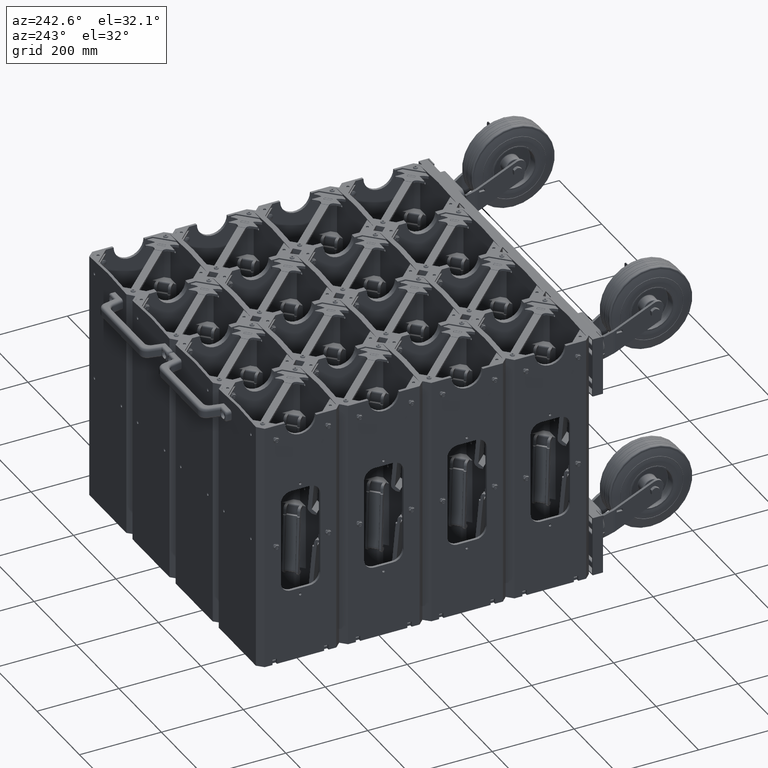
[diagram: clean part render]
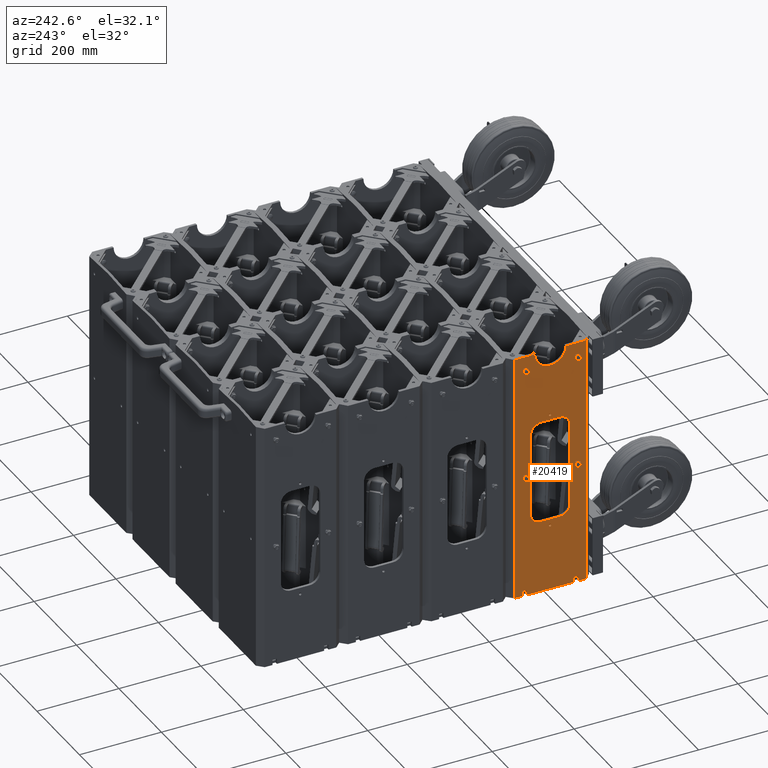
[diagram: same view with one face highlighted and labeled with its STEP entity id]
A machine part, auxiliary view. The second image highlights one B-rep face of the part: STEP entity #20419.
In plain terms, the highlighted planar face has unit normal (1, -0, -0).
Its self-contained STEP definition (entity closure, byte-faithful):
#2328 = AXIS2_PLACEMENT_3D ( 'NONE', #15723, #15725, #15727 ) ;
#2331 = AXIS2_PLACEMENT_3D ( 'NONE', #15704, #15706, #15708 ) ;
#2335 = AXIS2_PLACEMENT_3D ( 'NONE', #15742, #15745, #15746 ) ;
#2339 = AXIS2_PLACEMENT_3D ( 'NONE', #15737, #15764, #15766 ) ;
#2341 = AXIS2_PLACEMENT_3D ( 'NONE', #15763, #15784, #15785 ) ;
#2343 = AXIS2_PLACEMENT_3D ( 'NONE', #15783, #15805, #15806 ) ;
#11695 = CARTESIAN_POINT ( 'NONE',  ( 4.387244592291482200E-015, -4.000000000000000900, 5.863000000000000400 ) ) ;
#11697 = CARTESIAN_POINT ( 'NONE',  ( 0.0000000000000000000, -4.000000000000000900, 5.597000000000000400 ) ) ;
#11702 = CARTESIAN_POINT ( 'NONE',  ( 1.628780242866133300E-017, -4.000000000000000900, -5.261999999999999600 ) ) ;
#11704 = CARTESIAN_POINT ( 'NONE',  ( 0.0000000000000000000, -4.000000000000000900, -5.527999999999999600 ) ) ;
#11709 = CARTESIAN_POINT ( 'NONE',  ( 2.500000000000004400, -4.000000000000009800, -10.51199999999999700 ) ) ;
#11711 = CARTESIAN_POINT ( 'NONE',  ( 2.500000000000000000, -4.000000000000009800, -10.77799999999999700 ) ) ;
#11716 = CARTESIAN_POINT ( 'NONE',  ( -2.499999999999995600, -4.000000000000000900, -10.51200000000000200 ) ) ;
#11718 = CARTESIAN_POINT ( 'NONE',  ( -2.500000000000000000, -4.000000000000000900, -10.77800000000000200 ) ) ;
#11723 = CARTESIAN_POINT ( 'NONE',  ( 2.500000000000000000, -4.000000000000009800, 0.2380000000000009600 ) ) ;
#11724 = CARTESIAN_POINT ( 'NONE',  ( 2.499999999999995600, -4.000000000000009800, -0.02799999999999853000 ) ) ;
#11730 = CARTESIAN_POINT ( 'NONE',  ( -2.500000000000000000, -4.000000000000000900, 0.2380000000000009100 ) ) ;
#11731 = CARTESIAN_POINT ( 'NONE',  ( -2.500000000000000000, -4.000000000000000900, -0.02799999999999853000 ) ) ;
#11781 = CARTESIAN_POINT ( 'NONE',  ( -3.437500000000004900, -4.000000000000000900, 12.10499999999999500 ) ) ;
#11783 = CARTESIAN_POINT ( 'NONE',  ( -2.687500000000000400, -4.000000000000000900, 12.10499999999999900 ) ) ;
#11788 = CARTESIAN_POINT ( 'NONE',  ( -2.263500000000002700, -4.000000000000000900, 12.10499999999999900 ) ) ;
#11790 = CARTESIAN_POINT ( 'NONE',  ( 2.263499999999998300, -4.000000000000009800, 12.10500000000000200 ) ) ;
#11795 = CARTESIAN_POINT ( 'NONE',  ( 2.687500000000000400, -4.000000000000009800, 12.10500000000000200 ) ) ;
#11796 = CARTESIAN_POINT ( 'NONE',  ( 3.437499999999992000, -4.000000000000005300, 12.10500000000000200 ) ) ;
#11922 = CARTESIAN_POINT ( 'NONE',  ( -1.500000000000000900, -4.000000000000000900, -11.89500000000000100 ) ) ;
#11923 = CARTESIAN_POINT ( 'NONE',  ( -3.437500000000000900, -4.000000000000000900, -11.89500000000000500 ) ) ;
#11925 = CARTESIAN_POINT ( 'NONE',  ( 1.499999999999996700, -4.000000000000005300, -11.89499999999999800 ) ) ;
#11927 = CARTESIAN_POINT ( 'NONE',  ( 3.437499999999996400, -4.000000000000009800, -11.89499999999999800 ) ) ;
#11928 = CARTESIAN_POINT ( 'NONE',  ( -1.894999999999999400, -4.000000000000000900, 4.104999999999999500 ) ) ;
#11930 = CARTESIAN_POINT ( 'NONE',  ( -1.895000000000003800, -4.000000000000000900, -3.894999999999996900 ) ) ;
#11932 = CARTESIAN_POINT ( 'NONE',  ( -0.8950000000000045700, -4.000000000000000900, 5.104999999999999500 ) ) ;
#11934 = CARTESIAN_POINT ( 'NONE',  ( 0.8950000000000001300, -4.000000000000005300, 5.105000000000001300 ) ) ;
#11935 = CARTESIAN_POINT ( 'NONE',  ( 1.894999999999999400, -4.000000000000009800, 4.105000000000000400 ) ) ;
#11937 = CARTESIAN_POINT ( 'NONE',  ( 1.894999999999999400, -4.000000000000009800, -3.894999999999991100 ) ) ;
#11939 = CARTESIAN_POINT ( 'NONE',  ( 0.8949999999999870300, -4.000000000000005300, -4.894999999999996900 ) ) ;
#11940 = CARTESIAN_POINT ( 'NONE',  ( -0.8950000000000045700, -4.000000000000000900, -4.894999999999998700 ) ) ;
#11942 = CARTESIAN_POINT ( 'NONE',  ( 2.263499999999998300, -4.000000000000009800, 11.60500000000000200 ) ) ;
#11944 = CARTESIAN_POINT ( 'NONE',  ( 2.687500000000000400, -4.000000000000009800, 11.60500000000000200 ) ) ;
#11946 = CARTESIAN_POINT ( 'NONE',  ( -2.263500000000002700, -4.000000000000000900, 11.60499999999999900 ) ) ;
#11947 = CARTESIAN_POINT ( 'NONE',  ( -2.687500000000000400, -4.000000000000000900, 11.60499999999999900 ) ) ;
#15324 = CARTESIAN_POINT ( 'NONE',  ( -4.000000000000000900, -4.000000000000000900, -11.89500000000000500 ) ) ;
#15326 = DIRECTION ( 'NONE',  ( 1.000000000000000000, -1.972152263052529500E-031, 0.0000000000000000000 ) ) ;
#15335 = CARTESIAN_POINT ( 'NONE',  ( -2.500000000000000000, -4.000000000000000900, -10.64500000000000100 ) ) ;
#15345 = CARTESIAN_POINT ( 'NONE',  ( -4.000000000000000900, -4.000000000000000900, -11.89500000000000500 ) ) ;
#15347 = DIRECTION ( 'NONE',  ( 1.000000000000000000, -1.972152263052529500E-031, 0.0000000000000000000 ) ) ;
#15351 = DIRECTION ( 'NONE',  ( 1.972152263052529500E-031, -1.000000000000000000, 0.0000000000000000000 ) ) ;
#15353 = DIRECTION ( 'NONE',  ( 0.0000000000000000000, 0.0000000000000000000, -1.000000000000000000 ) ) ;
#15354 = CARTESIAN_POINT ( 'NONE',  ( -1.894999999999999400, -4.000000000000000900, 4.105000000000000400 ) ) ;
#15358 = CARTESIAN_POINT ( 'NONE',  ( 2.499999999999995600, -4.000000000000009800, 0.1050000000000012000 ) ) ;
#15369 = DIRECTION ( 'NONE',  ( 1.972152263052529500E-031, -1.000000000000000000, 0.0000000000000000000 ) ) ;
#15371 = DIRECTION ( 'NONE',  ( 0.0000000000000000000, 0.0000000000000000000, -1.000000000000000000 ) ) ;
#15372 = CARTESIAN_POINT ( 'NONE',  ( -2.500000000000000000, -4.000000000000000900, 0.1050000000000011900 ) ) ;
#15375 = DIRECTION ( 'NONE',  ( 1.972152263052529500E-031, -1.000000000000000000, 0.0000000000000000000 ) ) ;
#15376 = DIRECTION ( 'NONE',  ( 0.0000000000000000000, 0.0000000000000000000, -1.000000000000000000 ) ) ;
#15378 = CARTESIAN_POINT ( 'NONE',  ( 2.500000000000000000, -4.000000000000009800, -10.64499999999999800 ) ) ;
#15380 = DIRECTION ( 'NONE',  ( 1.972152263052529500E-031, -1.000000000000000000, 0.0000000000000000000 ) ) ;
#15382 = DIRECTION ( 'NONE',  ( 0.0000000000000000000, 0.0000000000000000000, -1.000000000000000000 ) ) ;
#15384 = CARTESIAN_POINT ( 'NONE',  ( 0.0000000000000000000, -4.000000000000000900, 5.730000000000000400 ) ) ;
#15386 = DIRECTION ( 'NONE',  ( 1.972152263052529500E-031, -1.000000000000000000, 0.0000000000000000000 ) ) ;
#15388 = DIRECTION ( 'NONE',  ( 0.0000000000000000000, 0.0000000000000000000, -1.000000000000000000 ) ) ;
#15390 = CARTESIAN_POINT ( 'NONE',  ( 0.0000000000000000000, -4.000000000000000900, -5.394999999999999600 ) ) ;
#15392 = DIRECTION ( 'NONE',  ( 1.972152263052529500E-031, -1.000000000000000000, 0.0000000000000000000 ) ) ;
#15393 = DIRECTION ( 'NONE',  ( 0.0000000000000000000, 0.0000000000000000000, -1.000000000000000000 ) ) ;
#15395 = CARTESIAN_POINT ( 'NONE',  ( -0.8950000000000045700, -4.000000000000000900, 5.104999999999999500 ) ) ;
#15398 = DIRECTION ( 'NONE',  ( -2.048885995248197900E-016, 0.0000000000000000000, -1.000000000000000000 ) ) ;
#15399 = CARTESIAN_POINT ( 'NONE',  ( 0.8950000000000001300, -4.000000000000005300, 4.105000000000001300 ) ) ;
#15401 = DIRECTION ( 'NONE',  ( 1.972152263052529500E-031, -1.000000000000000000, 0.0000000000000000000 ) ) ;
#15403 = DIRECTION ( 'NONE',  ( 0.0000000000000000000, 0.0000000000000000000, -1.000000000000000000 ) ) ;
#15405 = CARTESIAN_POINT ( 'NONE',  ( -0.8950000000000001300, -4.000000000000000900, 4.104999999999999500 ) ) ;
#15407 = DIRECTION ( 'NONE',  ( 1.972152263052529500E-031, -1.000000000000000000, 0.0000000000000000000 ) ) ;
#15409 = DIRECTION ( 'NONE',  ( 0.0000000000000000000, 0.0000000000000000000, 1.000000000000000000 ) ) ;
#15410 = CARTESIAN_POINT ( 'NONE',  ( 1.894999999999999400, -4.000000000000009800, 4.105000000000000400 ) ) ;
#15413 = DIRECTION ( 'NONE',  ( -1.000000000000000000, 1.972152263052529100E-031, -6.104688253998350900E-016 ) ) ;
#15415 = CARTESIAN_POINT ( 'NONE',  ( -0.8950000000000045700, -4.000000000000000900, -4.894999999999998700 ) ) ;
#15417 = DIRECTION ( 'NONE',  ( 0.0000000000000000000, 0.0000000000000000000, 1.000000000000000000 ) ) ;
#15418 = CARTESIAN_POINT ( 'NONE',  ( 0.8950000000000001300, -4.000000000000005300, -3.894999999999996500 ) ) ;
#15421 = DIRECTION ( 'NONE',  ( 1.972152263052529500E-031, -1.000000000000000000, 0.0000000000000000000 ) ) ;
#15422 = DIRECTION ( 'NONE',  ( 0.0000000000000000000, 0.0000000000000000000, -1.000000000000000000 ) ) ;
#15425 = CARTESIAN_POINT ( 'NONE',  ( 2.263499999999998300, -4.000000000000009800, 12.10500000000000200 ) ) ;
#15426 = DIRECTION ( 'NONE',  ( 1.000000000000000000, -1.972152263052529500E-031, 0.0000000000000000000 ) ) ;
#15428 = CARTESIAN_POINT ( 'NONE',  ( -0.8950000000000045700, -4.000000000000000900, -3.894999999999998200 ) ) ;
#15430 = DIRECTION ( 'NONE',  ( 1.972152263052529500E-031, -1.000000000000000000, 0.0000000000000000000 ) ) ;
#15432 = DIRECTION ( 'NONE',  ( 0.0000000000000000000, 0.0000000000000000000, 1.000000000000000000 ) ) ;
#15434 = CARTESIAN_POINT ( 'NONE',  ( 2.263499999999998300, -4.000000000000009800, 11.60500000000000200 ) ) ;
#15436 = DIRECTION ( 'NONE',  ( 5.463695987328531400E-016, -1.642146637880645000E-046, -1.000000000000000000 ) ) ;
#15438 = CARTESIAN_POINT ( 'NONE',  ( -2.263500000000002700, -4.000000000000000900, 12.10499999999999900 ) ) ;
#15440 = DIRECTION ( 'NONE',  ( 1.000000000000000000, -1.972152263052529500E-031, 0.0000000000000000000 ) ) ;
#15442 = CARTESIAN_POINT ( 'NONE',  ( -2.687500000000000400, -4.000000000000000900, 12.10499999999999900 ) ) ;
#15444 = DIRECTION ( 'NONE',  ( 5.463695987328531400E-016, -8.758115402030106700E-047, 1.000000000000000000 ) ) ;
#15447 = CARTESIAN_POINT ( 'NONE',  ( -3.437500000000004900, -4.000000000000000900, 12.10499999999999500 ) ) ;
#15448 = DIRECTION ( 'NONE',  ( 0.0000000000000000000, 0.0000000000000000000, -1.000000000000000000 ) ) ;
#15450 = CARTESIAN_POINT ( 'NONE',  ( -4.370956789862821100E-015, -4.000000000000000900, -11.89500000000000000 ) ) ;
#15452 = DIRECTION ( 'NONE',  ( 1.972152263052529500E-031, -1.000000000000000000, 0.0000000000000000000 ) ) ;
#15454 = DIRECTION ( 'NONE',  ( 0.0000000000000000000, 0.0000000000000000000, -1.000000000000000000 ) ) ;
#15456 = CARTESIAN_POINT ( 'NONE',  ( -2.687500000000000400, -4.000000000000000900, 11.60499999999999900 ) ) ;
#15458 = DIRECTION ( 'NONE',  ( 1.000000000000000000, -1.972152263052529500E-031, 0.0000000000000000000 ) ) ;
#15462 = DIRECTION ( 'NONE',  ( 0.0000000000000000000, 0.0000000000000000000, -1.000000000000000000 ) ) ;
#15468 = CARTESIAN_POINT ( 'NONE',  ( 3.437499999999996400, -4.000000000000005300, 12.10500000000000200 ) ) ;
#15470 = DIRECTION ( 'NONE',  ( 0.0000000000000000000, 0.0000000000000000000, 1.000000000000000000 ) ) ;
#15472 = CARTESIAN_POINT ( 'NONE',  ( 2.687500000000000400, -4.000000000000009800, 12.10500000000000200 ) ) ;
#15474 = DIRECTION ( 'NONE',  ( 0.0000000000000000000, 0.0000000000000000000, 1.000000000000000000 ) ) ;
#15704 = CARTESIAN_POINT ( 'NONE',  ( 0.0000000000000000000, -4.000000000000000900, 5.730000000000000400 ) ) ;
#15706 = DIRECTION ( 'NONE',  ( 1.972152263052529500E-031, -1.000000000000000000, 0.0000000000000000000 ) ) ;
#15708 = DIRECTION ( 'NONE',  ( 0.0000000000000000000, 0.0000000000000000000, -1.000000000000000000 ) ) ;
#15723 = CARTESIAN_POINT ( 'NONE',  ( 0.0000000000000000000, -4.000000000000000900, -5.394999999999999600 ) ) ;
#15725 = DIRECTION ( 'NONE',  ( 1.972152263052529500E-031, -1.000000000000000000, 0.0000000000000000000 ) ) ;
#15727 = DIRECTION ( 'NONE',  ( 0.0000000000000000000, 0.0000000000000000000, -1.000000000000000000 ) ) ;
#15737 = CARTESIAN_POINT ( 'NONE',  ( -2.500000000000000000, -4.000000000000000900, -10.64500000000000100 ) ) ;
#15742 = CARTESIAN_POINT ( 'NONE',  ( 2.500000000000000000, -4.000000000000009800, -10.64499999999999800 ) ) ;
#15745 = DIRECTION ( 'NONE',  ( 1.972152263052529500E-031, -1.000000000000000000, 0.0000000000000000000 ) ) ;
#15746 = DIRECTION ( 'NONE',  ( 0.0000000000000000000, 0.0000000000000000000, -1.000000000000000000 ) ) ;
#15763 = CARTESIAN_POINT ( 'NONE',  ( 2.499999999999995600, -4.000000000000009800, 0.1050000000000012000 ) ) ;
#15764 = DIRECTION ( 'NONE',  ( 1.972152263052529500E-031, -1.000000000000000000, 0.0000000000000000000 ) ) ;
#15766 = DIRECTION ( 'NONE',  ( 0.0000000000000000000, 0.0000000000000000000, -1.000000000000000000 ) ) ;
#15783 = CARTESIAN_POINT ( 'NONE',  ( -2.500000000000000000, -4.000000000000000900, 0.1050000000000011900 ) ) ;
#15784 = DIRECTION ( 'NONE',  ( 1.972152263052529500E-031, -1.000000000000000000, 0.0000000000000000000 ) ) ;
#15785 = DIRECTION ( 'NONE',  ( 0.0000000000000000000, 0.0000000000000000000, -1.000000000000000000 ) ) ;
#15805 = DIRECTION ( 'NONE',  ( 1.972152263052529500E-031, -1.000000000000000000, 0.0000000000000000000 ) ) ;
#15806 = DIRECTION ( 'NONE',  ( 0.0000000000000000000, 0.0000000000000000000, -1.000000000000000000 ) ) ;
#15986 = CARTESIAN_POINT ( 'NONE',  ( -4.000000000000000900, -4.000000000000000900, 12.10499999999999500 ) ) ;
#15988 = DIRECTION ( 'NONE',  ( 1.000000000000000000, -1.972152263052529500E-031, 0.0000000000000000000 ) ) ;
#16002 = CARTESIAN_POINT ( 'NONE',  ( -4.000000000000000900, -4.000000000000000900, 12.10499999999999500 ) ) ;
#16004 = DIRECTION ( 'NONE',  ( 1.000000000000000000, -1.972152263052529500E-031, 0.0000000000000000000 ) ) ;
#16019 = CARTESIAN_POINT ( 'NONE',  ( -4.000000000000000900, -4.000000000000000900, 12.10499999999999500 ) ) ;
#16021 = DIRECTION ( 'NONE',  ( 1.000000000000000000, -1.972152263052529500E-031, 0.0000000000000000000 ) ) ;
#16633 = CIRCLE ( 'NONE', #2331, 0.1329999999999999200 ) ;
#16639 = CIRCLE ( 'NONE', #2328, 0.1329999999999999200 ) ;
#16646 = CIRCLE ( 'NONE', #2335, 0.1329999999999999200 ) ;
#16652 = CIRCLE ( 'NONE', #2339, 0.1329999999999999200 ) ;
#16658 = CIRCLE ( 'NONE', #2341, 0.1329999999999997300 ) ;
#16664 = CIRCLE ( 'NONE', #2343, 0.1329999999999997000 ) ;
#16739 = LINE ( 'NONE', #15986, #16740 ) ;
#16740 = VECTOR ( 'NONE', #15988, 39.37007874015748100 ) ;
#16747 = LINE ( 'NONE', #16002, #16748 ) ;
#16748 = VECTOR ( 'NONE', #16004, 39.37007874015748100 ) ;
#16755 = LINE ( 'NONE', #16019, #16756 ) ;
#16756 = VECTOR ( 'NONE', #16021, 39.37007874015748100 ) ;
#20419 = ADVANCED_FACE ( 'NONE', ( #32885, #32889, #32891, #32893, #32886, #32887, #32890, #32892 ), #30553, .F. ) ;
#22318 = EDGE_CURVE ( 'NONE', #38531, #38530, #31425, .T. ) ;
#22322 = EDGE_CURVE ( 'NONE', #38532, #38533, #31416, .T. ) ;
#22323 = EDGE_CURVE ( 'NONE', #38411, #38410, #31433, .T. ) ;
#22326 = EDGE_CURVE ( 'NONE', #38415, #38414, #31436, .T. ) ;
#22327 = EDGE_CURVE ( 'NONE', #38419, #38418, #31437, .T. ) ;
#22328 = EDGE_CURVE ( 'NONE', #38407, #38406, #31438, .T. ) ;
#22329 = EDGE_CURVE ( 'NONE', #38399, #38398, #31439, .T. ) ;
#22330 = EDGE_CURVE ( 'NONE', #38403, #38402, #31441, .T. ) ;
#22331 = EDGE_CURVE ( 'NONE', #38534, #38535, #31440, .T. ) ;
#22332 = EDGE_CURVE ( 'NONE', #38538, #38537, #31444, .T. ) ;
#22333 = EDGE_CURVE ( 'NONE', #38536, #38534, #31446, .T. ) ;
#22334 = EDGE_CURVE ( 'NONE', #38537, #38536, #31445, .T. ) ;
#22335 = EDGE_CURVE ( 'NONE', #38539, #38538, #31435, .T. ) ;
#22336 = EDGE_CURVE ( 'NONE', #38540, #38539, #31451, .T. ) ;
#22337 = EDGE_CURVE ( 'NONE', #38541, #38540, #31450, .T. ) ;
#22338 = EDGE_CURVE ( 'NONE', #38535, #38541, #31455, .T. ) ;
#22339 = EDGE_CURVE ( 'NONE', #38453, #38542, #31454, .T. ) ;
#22340 = EDGE_CURVE ( 'NONE', #38542, #38543, #31453, .T. ) ;
#22341 = EDGE_CURVE ( 'NONE', #38544, #38452, #31452, .T. ) ;
#22342 = EDGE_CURVE ( 'NONE', #38449, #38545, #31449, .T. ) ;
#22343 = EDGE_CURVE ( 'NONE', #38532, #38530, #31464, .T. ) ;
#22344 = EDGE_CURVE ( 'NONE', #38545, #38544, #31460, .T. ) ;
#22345 = EDGE_CURVE ( 'NONE', #38448, #38531, #31463, .T. ) ;
#22347 = EDGE_CURVE ( 'NONE', #38533, #38457, #31469, .T. ) ;
#22348 = EDGE_CURVE ( 'NONE', #38543, #38456, #31471, .T. ) ;
#23255 = ORIENTED_EDGE ( 'NONE', *, *, #22329, .F. ) ;
#23256 = ORIENTED_EDGE ( 'NONE', *, *, #44490, .F. ) ;
#23257 = ORIENTED_EDGE ( 'NONE', *, *, #22330, .F. ) ;
#23258 = ORIENTED_EDGE ( 'NONE', *, *, #44494, .F. ) ;
#23259 = ORIENTED_EDGE ( 'NONE', *, *, #22328, .F. ) ;
#23260 = ORIENTED_EDGE ( 'NONE', *, *, #44498, .F. ) ;
#23261 = ORIENTED_EDGE ( 'NONE', *, *, #22323, .F. ) ;
#23262 = ORIENTED_EDGE ( 'NONE', *, *, #44502, .F. ) ;
#23263 = ORIENTED_EDGE ( 'NONE', *, *, #22326, .F. ) ;
#23264 = ORIENTED_EDGE ( 'NONE', *, *, #44506, .F. ) ;
#23265 = ORIENTED_EDGE ( 'NONE', *, *, #22327, .F. ) ;
#23266 = ORIENTED_EDGE ( 'NONE', *, *, #44510, .F. ) ;
#23267 = ORIENTED_EDGE ( 'NONE', *, *, #22331, .F. ) ;
#23268 = ORIENTED_EDGE ( 'NONE', *, *, #22333, .F. ) ;
#23269 = ORIENTED_EDGE ( 'NONE', *, *, #22334, .F. ) ;
#23270 = ORIENTED_EDGE ( 'NONE', *, *, #22332, .F. ) ;
#23271 = ORIENTED_EDGE ( 'NONE', *, *, #22335, .F. ) ;
#23272 = ORIENTED_EDGE ( 'NONE', *, *, #22336, .F. ) ;
#23273 = ORIENTED_EDGE ( 'NONE', *, *, #22337, .F. ) ;
#23274 = ORIENTED_EDGE ( 'NONE', *, *, #22338, .F. ) ;
#23275 = ORIENTED_EDGE ( 'NONE', *, *, #22340, .F. ) ;
#23276 = ORIENTED_EDGE ( 'NONE', *, *, #22339, .F. ) ;
#23277 = ORIENTED_EDGE ( 'NONE', *, *, #44556, .F. ) ;
#23278 = ORIENTED_EDGE ( 'NONE', *, *, #22341, .F. ) ;
#23279 = ORIENTED_EDGE ( 'NONE', *, *, #22344, .F. ) ;
#23280 = ORIENTED_EDGE ( 'NONE', *, *, #22342, .F. ) ;
#23281 = ORIENTED_EDGE ( 'NONE', *, *, #44552, .F. ) ;
#23282 = ORIENTED_EDGE ( 'NONE', *, *, #22345, .T. ) ;
#23283 = ORIENTED_EDGE ( 'NONE', *, *, #22318, .T. ) ;
#23284 = ORIENTED_EDGE ( 'NONE', *, *, #22343, .F. ) ;
#23285 = ORIENTED_EDGE ( 'NONE', *, *, #22322, .T. ) ;
#23286 = ORIENTED_EDGE ( 'NONE', *, *, #22347, .T. ) ;
#23287 = ORIENTED_EDGE ( 'NONE', *, *, #44560, .F. ) ;
#23288 = ORIENTED_EDGE ( 'NONE', *, *, #22348, .F. ) ;
#27452 = AXIS2_PLACEMENT_3D ( 'NONE', #30544, #30556, #30558 ) ;
#27924 = AXIS2_PLACEMENT_3D ( 'NONE', #15358, #15369, #15371 ) ;
#27929 = AXIS2_PLACEMENT_3D ( 'NONE', #15372, #15375, #15376 ) ;
#27930 = AXIS2_PLACEMENT_3D ( 'NONE', #15384, #15386, #15388 ) ;
#27931 = AXIS2_PLACEMENT_3D ( 'NONE', #15335, #15351, #15353 ) ;
#27932 = AXIS2_PLACEMENT_3D ( 'NONE', #15378, #15380, #15382 ) ;
#27933 = AXIS2_PLACEMENT_3D ( 'NONE', #15390, #15392, #15393 ) ;
#27934 = AXIS2_PLACEMENT_3D ( 'NONE', #15450, #15452, #15454 ) ;
#27935 = AXIS2_PLACEMENT_3D ( 'NONE', #15399, #15401, #15403 ) ;
#27936 = AXIS2_PLACEMENT_3D ( 'NONE', #15405, #15407, #15409 ) ;
#27937 = AXIS2_PLACEMENT_3D ( 'NONE', #15428, #15430, #15432 ) ;
#27938 = AXIS2_PLACEMENT_3D ( 'NONE', #15418, #15421, #15422 ) ;
#30544 = CARTESIAN_POINT ( 'NONE',  ( -4.000000000000000900, -4.000000000000000900, 12.10499999999999500 ) ) ;
#30553 = PLANE ( 'NONE',  #27452 ) ;
#30556 = DIRECTION ( 'NONE',  ( -1.972152263052529500E-031, 1.000000000000000000, 0.0000000000000000000 ) ) ;
#30558 = DIRECTION ( 'NONE',  ( 0.0000000000000000000, 0.0000000000000000000, 1.000000000000000000 ) ) ;
#31416 = LINE ( 'NONE', #15345, #31431 ) ;
#31425 = LINE ( 'NONE', #15324, #31426 ) ;
#31426 = VECTOR ( 'NONE', #15326, 39.37007874015748100 ) ;
#31431 = VECTOR ( 'NONE', #15347, 39.37007874015748100 ) ;
#31433 = CIRCLE ( 'NONE', #27931, 0.1329999999999999200 ) ;
#31434 = VECTOR ( 'NONE', #15398, 39.37007874015748100 ) ;
#31435 = LINE ( 'NONE', #15410, #31447 ) ;
#31436 = CIRCLE ( 'NONE', #27924, 0.1329999999999997300 ) ;
#31437 = CIRCLE ( 'NONE', #27929, 0.1329999999999997000 ) ;
#31438 = CIRCLE ( 'NONE', #27932, 0.1329999999999999200 ) ;
#31439 = CIRCLE ( 'NONE', #27930, 0.1329999999999999200 ) ;
#31440 = LINE ( 'NONE', #15354, #31434 ) ;
#31441 = CIRCLE ( 'NONE', #27933, 0.1329999999999999200 ) ;
#31442 = VECTOR ( 'NONE', #15413, 39.37007874015748100 ) ;
#31443 = VECTOR ( 'NONE', #15436, 39.37007874015748100 ) ;
#31444 = CIRCLE ( 'NONE', #27935, 1.000000000000000900 ) ;
#31445 = LINE ( 'NONE', #15395, #31442 ) ;
#31446 = CIRCLE ( 'NONE', #27936, 0.9999999999999996700 ) ;
#31447 = VECTOR ( 'NONE', #15417, 39.37007874015748100 ) ;
#31448 = VECTOR ( 'NONE', #15426, 39.37007874015748100 ) ;
#31449 = LINE ( 'NONE', #15442, #31459 ) ;
#31450 = LINE ( 'NONE', #15415, #31448 ) ;
#31451 = CIRCLE ( 'NONE', #27938, 1.000000000000000200 ) ;
#31452 = LINE ( 'NONE', #15438, #31457 ) ;
#31453 = LINE ( 'NONE', #15434, #31456 ) ;
#31454 = LINE ( 'NONE', #15425, #31443 ) ;
#31455 = CIRCLE ( 'NONE', #27937, 1.000000000000000200 ) ;
#31456 = VECTOR ( 'NONE', #15440, 39.37007874015748100 ) ;
#31457 = VECTOR ( 'NONE', #15444, 39.37007874015748100 ) ;
#31458 = VECTOR ( 'NONE', #15458, 39.37007874015748100 ) ;
#31459 = VECTOR ( 'NONE', #15448, 39.37007874015748100 ) ;
#31460 = LINE ( 'NONE', #15456, #31458 ) ;
#31463 = LINE ( 'NONE', #15447, #31465 ) ;
#31464 = CIRCLE ( 'NONE', #27934, 1.500000000000000900 ) ;
#31465 = VECTOR ( 'NONE', #15462, 39.37007874015748100 ) ;
#31469 = LINE ( 'NONE', #15468, #31470 ) ;
#31470 = VECTOR ( 'NONE', #15470, 39.37007874015748100 ) ;
#31471 = LINE ( 'NONE', #15472, #31472 ) ;
#31472 = VECTOR ( 'NONE', #15474, 39.37007874015748100 ) ;
#32156 = EDGE_LOOP ( 'NONE', ( #23267, #23268, #23269, #23270, #23271, #23272, #23273, #23274 ) ) ;
#32168 = EDGE_LOOP ( 'NONE', ( #23263, #23264 ) ) ;
#32170 = EDGE_LOOP ( 'NONE', ( #23275, #23276, #23277, #23278, #23279, #23280, #23281, #23282, #23283, #23284, #23285, #23286, #23287, #23288 ) ) ;
#32173 = EDGE_LOOP ( 'NONE', ( #23265, #23266 ) ) ;
#32188 = EDGE_LOOP ( 'NONE', ( #23257, #23258 ) ) ;
#32189 = EDGE_LOOP ( 'NONE', ( #23261, #23262 ) ) ;
#32194 = EDGE_LOOP ( 'NONE', ( #23259, #23260 ) ) ;
#32258 = EDGE_LOOP ( 'NONE', ( #23255, #23256 ) ) ;
#32885 = FACE_BOUND ( 'NONE', #32258, .T. ) ;
#32886 = FACE_BOUND ( 'NONE', #32168, .T. ) ;
#32887 = FACE_BOUND ( 'NONE', #32173, .T. ) ;
#32889 = FACE_BOUND ( 'NONE', #32188, .T. ) ;
#32890 = FACE_BOUND ( 'NONE', #32156, .T. ) ;
#32891 = FACE_BOUND ( 'NONE', #32194, .T. ) ;
#32892 = FACE_OUTER_BOUND ( 'NONE', #32170, .T. ) ;
#32893 = FACE_BOUND ( 'NONE', #32189, .T. ) ;
#38398 = VERTEX_POINT ( 'NONE', #11695 ) ;
#38399 = VERTEX_POINT ( 'NONE', #11697 ) ;
#38402 = VERTEX_POINT ( 'NONE', #11702 ) ;
#38403 = VERTEX_POINT ( 'NONE', #11704 ) ;
#38406 = VERTEX_POINT ( 'NONE', #11709 ) ;
#38407 = VERTEX_POINT ( 'NONE', #11711 ) ;
#38410 = VERTEX_POINT ( 'NONE', #11716 ) ;
#38411 = VERTEX_POINT ( 'NONE', #11718 ) ;
#38414 = VERTEX_POINT ( 'NONE', #11723 ) ;
#38415 = VERTEX_POINT ( 'NONE', #11724 ) ;
#38418 = VERTEX_POINT ( 'NONE', #11730 ) ;
#38419 = VERTEX_POINT ( 'NONE', #11731 ) ;
#38448 = VERTEX_POINT ( 'NONE', #11781 ) ;
#38449 = VERTEX_POINT ( 'NONE', #11783 ) ;
#38452 = VERTEX_POINT ( 'NONE', #11788 ) ;
#38453 = VERTEX_POINT ( 'NONE', #11790 ) ;
#38456 = VERTEX_POINT ( 'NONE', #11795 ) ;
#38457 = VERTEX_POINT ( 'NONE', #11796 ) ;
#38530 = VERTEX_POINT ( 'NONE', #11922 ) ;
#38531 = VERTEX_POINT ( 'NONE', #11923 ) ;
#38532 = VERTEX_POINT ( 'NONE', #11925 ) ;
#38533 = VERTEX_POINT ( 'NONE', #11927 ) ;
#38534 = VERTEX_POINT ( 'NONE', #11928 ) ;
#38535 = VERTEX_POINT ( 'NONE', #11930 ) ;
#38536 = VERTEX_POINT ( 'NONE', #11932 ) ;
#38537 = VERTEX_POINT ( 'NONE', #11934 ) ;
#38538 = VERTEX_POINT ( 'NONE', #11935 ) ;
#38539 = VERTEX_POINT ( 'NONE', #11937 ) ;
#38540 = VERTEX_POINT ( 'NONE', #11939 ) ;
#38541 = VERTEX_POINT ( 'NONE', #11940 ) ;
#38542 = VERTEX_POINT ( 'NONE', #11942 ) ;
#38543 = VERTEX_POINT ( 'NONE', #11944 ) ;
#38544 = VERTEX_POINT ( 'NONE', #11946 ) ;
#38545 = VERTEX_POINT ( 'NONE', #11947 ) ;
#44490 = EDGE_CURVE ( 'NONE', #38398, #38399, #16633, .T. ) ;
#44494 = EDGE_CURVE ( 'NONE', #38402, #38403, #16639, .T. ) ;
#44498 = EDGE_CURVE ( 'NONE', #38406, #38407, #16646, .T. ) ;
#44502 = EDGE_CURVE ( 'NONE', #38410, #38411, #16652, .T. ) ;
#44506 = EDGE_CURVE ( 'NONE', #38414, #38415, #16658, .T. ) ;
#44510 = EDGE_CURVE ( 'NONE', #38418, #38419, #16664, .T. ) ;
#44552 = EDGE_CURVE ( 'NONE', #38448, #38449, #16739, .T. ) ;
#44556 = EDGE_CURVE ( 'NONE', #38452, #38453, #16747, .T. ) ;
#44560 = EDGE_CURVE ( 'NONE', #38456, #38457, #16755, .T. ) ;